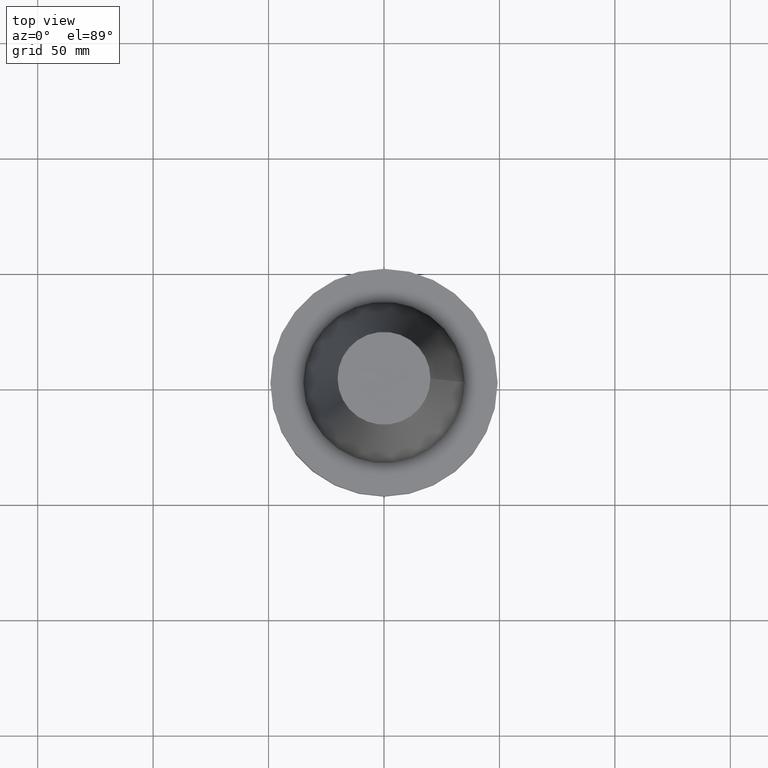
[diagram: clean part render]
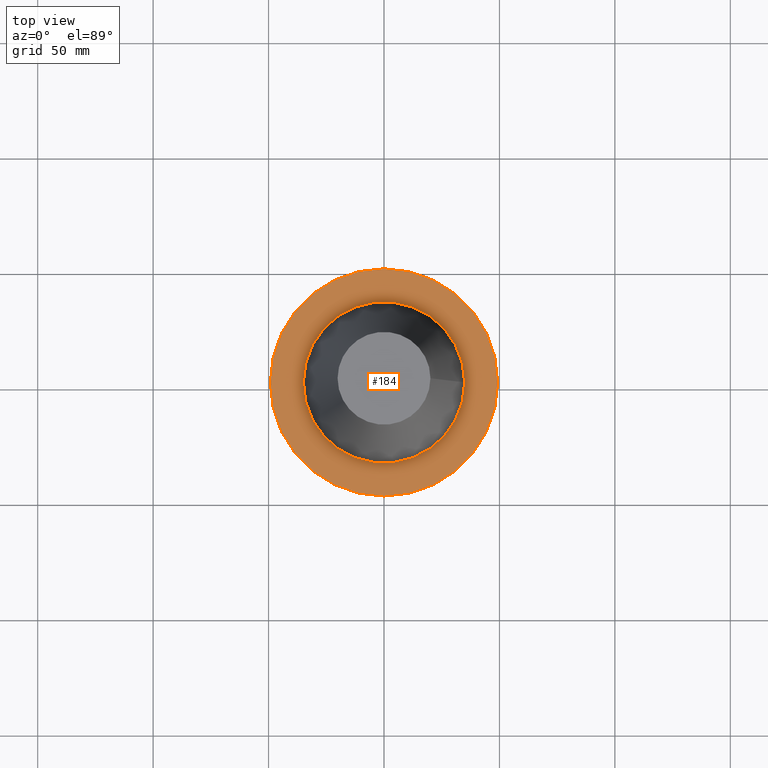
[diagram: same view with one face highlighted and labeled with its STEP entity id]
A machine part, top view. The second image highlights one B-rep face of the part: STEP entity #184.
In plain terms, the highlighted planar face has unit normal (0, 0, -1).
Its self-contained STEP definition (entity closure, byte-faithful):
#9 = CARTESIAN_POINT ( 'NONE',  ( 0.000000000000000000, 0.000000000000000000, -1.499999999999987566 ) ) ;
#16 = ORIENTED_EDGE ( 'NONE', *, *, #276, .F. ) ;
#32 = EDGE_LOOP ( 'NONE', ( #16 ) ) ;
#72 = CIRCLE ( 'NONE', #334, 34.92499999999999005 ) ;
#100 = CARTESIAN_POINT ( 'NONE',  ( 0.000000000000000000, 0.000000000000000000, -1.499999999999987566 ) ) ;
#108 = CARTESIAN_POINT ( 'NONE',  ( 49.21499999999999631, 0.000000000000000000, -1.499999999999987566 ) ) ;
#118 = FACE_BOUND ( 'NONE', #32, .T. ) ;
#122 = DIRECTION ( 'NONE',  ( 0.000000000000000000, 0.000000000000000000, -1.000000000000000000 ) ) ;
#125 = DIRECTION ( 'NONE',  ( -1.000000000000000000, 0.000000000000000000, -0.000000000000000000 ) ) ;
#128 = DIRECTION ( 'NONE',  ( -0.000000000000000000, -0.000000000000000000, 1.000000000000000000 ) ) ;
#130 = DIRECTION ( 'NONE',  ( 1.000000000000000000, 0.000000000000000000, 0.000000000000000000 ) ) ;
#138 = CARTESIAN_POINT ( 'NONE',  ( 34.92499999999999005, 0.000000000000000000, -1.499999999999987566 ) ) ;
#156 = PLANE ( 'NONE',  #190 ) ;
#172 = VERTEX_POINT ( 'NONE', #108 ) ;
#183 = FACE_OUTER_BOUND ( 'NONE', #322, .T. ) ;
#184 = ADVANCED_FACE ( 'NONE', ( #118, #183 ), #156, .F. ) ;
#185 = CIRCLE ( 'NONE', #235, 49.21499999999999631 ) ;
#190 = AXIS2_PLACEMENT_3D ( 'NONE', #213, #122, #125 ) ;
#213 = CARTESIAN_POINT ( 'NONE',  ( 0.000000000000000000, 49.21499999999999631, -1.499999999999992895 ) ) ;
#235 = AXIS2_PLACEMENT_3D ( 'NONE', #100, #378, #130 ) ;
#255 = DIRECTION ( 'NONE',  ( 1.000000000000000000, 0.000000000000000000, 0.000000000000000000 ) ) ;
#276 = EDGE_CURVE ( 'NONE', #348, #348, #72, .T. ) ;
#283 = ORIENTED_EDGE ( 'NONE', *, *, #297, .T. ) ;
#297 = EDGE_CURVE ( 'NONE', #172, #172, #185, .T. ) ;
#322 = EDGE_LOOP ( 'NONE', ( #283 ) ) ;
#334 = AXIS2_PLACEMENT_3D ( 'NONE', #9, #128, #255 ) ;
#348 = VERTEX_POINT ( 'NONE', #138 ) ;
#378 = DIRECTION ( 'NONE',  ( -0.000000000000000000, -0.000000000000000000, 1.000000000000000000 ) ) ;